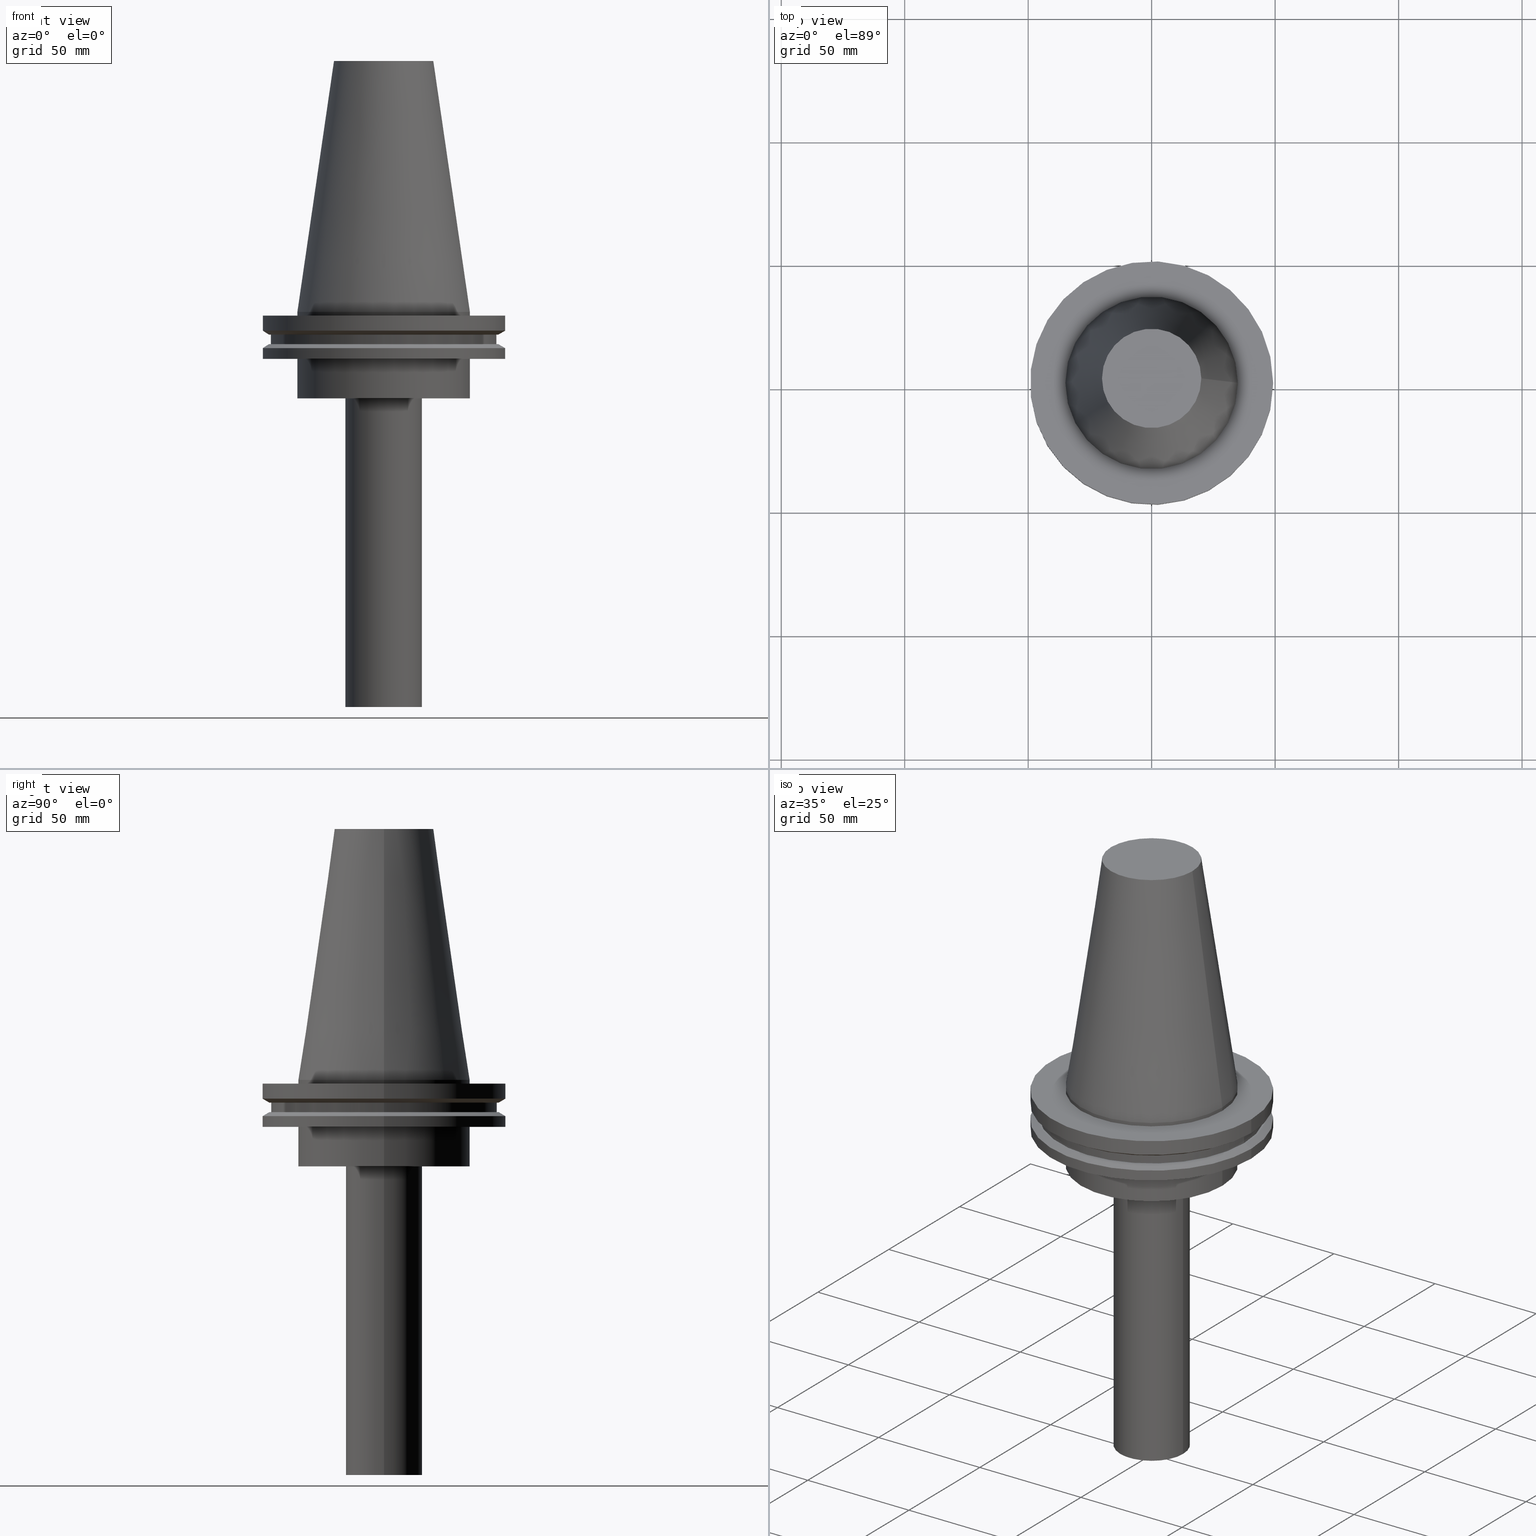
[diagram: canonical four-view strip — front | top / right | iso, engineering-drawing reading convention]
A machine part, canonical four-view strip (front | top / right | iso — engineering-drawing reading convention). The complete STEP part file that produces these views, byte-faithful:
ISO-10303-21;
HEADER;
FILE_DESCRIPTION (( 'STEP AP203' ),
    '1' );
FILE_NAME ('11.326.634.stp',
    '2022-03-09T14:50:47',
    ( '' ),
    ( '' ),
    'SwSTEP 2.0',
    'SolidWorks 2021',
    '' );
FILE_SCHEMA (( 'CONFIG_CONTROL_DESIGN' ));
ENDSEC;

DATA;
#1 = EDGE_LOOP ( 'NONE', ( #234 ) ) ;
#2 = DIRECTION ( 'NONE',  ( 1.000000000000000000, 0.000000000000000000, 0.000000000000000000 ) ) ;
#3 = EDGE_LOOP ( 'NONE', ( #334 ) ) ;
#4 = APPROVAL_ROLE ( '' ) ;
#5 = CARTESIAN_POINT ( 'NONE',  ( 15.50000000000000000, 0.000000000000000000, -159.9999999999999147 ) ) ;
#6 = CARTESIAN_POINT ( 'NONE',  ( 0.000000000000000000, 0.000000000000000000, 0.000000000000000000 ) ) ;
#7 = CIRCLE ( 'NONE', #151, 49.21499999999998920 ) ;
#8 = VERTEX_POINT ( 'NONE', #249 ) ;
#9 = LOCAL_TIME ( 8, 50, 47.00000000000000000, #311 ) ;
#10 = PERSON_AND_ORGANIZATION ( #111, #274 ) ;
#11 = VERTEX_POINT ( 'NONE', #378 ) ;
#12 = VERTEX_POINT ( 'NONE', #183 ) ;
#13 = APPROVAL_STATUS ( 'not_yet_approved' ) ;
#14 = FACE_OUTER_BOUND ( 'NONE', #1, .T. ) ;
#15 = AXIS2_PLACEMENT_3D ( 'NONE', #360, #44, #165 ) ;
#16 = AXIS2_PLACEMENT_3D ( 'NONE', #23, #365, #89 ) ;
#17 = PERSON_AND_ORGANIZATION_ROLE ( 'design_owner' ) ;
#18 = EDGE_CURVE ( 'NONE', #220, #220, #114, .T. ) ;
#19 = PLANE ( 'NONE',  #240 ) ;
#20 = CYLINDRICAL_SURFACE ( 'NONE', #332, 34.92499999999999005 ) ;
#21 = LOCAL_TIME ( 8, 50, 47.00000000000000000, #320 ) ;
#22 = DIRECTION ( 'NONE',  ( -0.000000000000000000, -0.000000000000000000, 1.000000000000000000 ) ) ;
#23 = CARTESIAN_POINT ( 'NONE',  ( 0.000000000000000000, 45.64500000000000313, -13.05499999999999794 ) ) ;
#24 = EDGE_LOOP ( 'NONE', ( #394 ) ) ;
#25 = FACE_OUTER_BOUND ( 'NONE', #3, .T. ) ;
#26 = FACE_BOUND ( 'NONE', #56, .T. ) ;
#27 = CIRCLE ( 'NONE', #219, 34.92499999999999005 ) ;
#28 = AXIS2_PLACEMENT_3D ( 'NONE', #258, #385, #197 ) ;
#29 = CARTESIAN_POINT ( 'NONE',  ( 34.92499999999999005, 0.000000000000000000, -1.499999999999987566 ) ) ;
#30 = DIRECTION ( 'NONE',  ( 1.000000000000000000, 0.000000000000000000, 0.000000000000000000 ) ) ;
#31 = VERTEX_POINT ( 'NONE', #29 ) ;
#32 = DIRECTION ( 'NONE',  ( 0.000000000000000000, 0.000000000000000000, -1.000000000000000000 ) ) ;
#33 = CC_DESIGN_PERSON_AND_ORGANIZATION_ASSIGNMENT ( #10, #162, ( #101 ) ) ;
#34 = CARTESIAN_POINT ( 'NONE',  ( 0.000000000000000000, 0.000000000000000000, 101.5999999999999943 ) ) ;
#35 = FACE_BOUND ( 'NONE', #298, .T. ) ;
#36 = PERSON_AND_ORGANIZATION_ROLE ( 'creator' ) ;
#37 = CARTESIAN_POINT ( 'NONE',  ( 49.21499999999999631, 0.000000000000000000, -1.499999999999987566 ) ) ;
#38 = ADVANCED_FACE ( 'NONE', ( #301, #26 ), #315, .T. ) ;
#39 = FACE_BOUND ( 'NONE', #203, .T. ) ;
#40 = LOCAL_TIME ( 8, 50, 47.00000000000000000, #254 ) ;
#41 = APPROVAL_DATE_TIME ( #380, #169 ) ;
#42 = DIRECTION ( 'NONE',  ( -0.000000000000000000, -0.000000000000000000, 1.000000000000000000 ) ) ;
#43 = DIRECTION ( 'NONE',  ( 0.000000000000000000, 0.000000000000000000, 1.000000000000000000 ) ) ;
#44 = DIRECTION ( 'NONE',  ( 0.000000000000000000, 0.000000000000000000, -1.000000000000000000 ) ) ;
#45 = CC_DESIGN_SECURITY_CLASSIFICATION ( #101, ( #390 ) ) ;
#46 = DIRECTION ( 'NONE',  ( -0.000000000000000000, -0.000000000000000000, 1.000000000000000000 ) ) ;
#47 = DIRECTION ( 'NONE',  ( 1.000000000000000000, 0.000000000000000000, 0.000000000000000000 ) ) ;
#48 = ADVANCED_FACE ( 'NONE', ( #180, #146 ), #152, .T. ) ;
#49 = AXIS2_PLACEMENT_3D ( 'NONE', #375, #350, #244 ) ;
#50 = CONICAL_SURFACE ( 'NONE', #15, 34.92499999999999005, 0.1448138465474119452 ) ;
#51 = LOCAL_TIME ( 8, 50, 47.00000000000000000, #167 ) ;
#52 = CARTESIAN_POINT ( 'NONE',  ( 0.000000000000000000, 0.000000000000000000, -9.204999999999991189 ) ) ;
#53 = ORIENTED_EDGE ( 'NONE', *, *, #75, .F. ) ;
#54 = DIRECTION ( 'NONE',  ( -0.000000000000000000, -0.000000000000000000, 1.000000000000000000 ) ) ;
#55 = CIRCLE ( 'NONE', #281, 34.92499999999999716 ) ;
#56 = EDGE_LOOP ( 'NONE', ( #210 ) ) ;
#57 = FACE_OUTER_BOUND ( 'NONE', #383, .T. ) ;
#58 = ORIENTED_EDGE ( 'NONE', *, *, #250, .F. ) ;
#59 = EDGE_CURVE ( 'NONE', #154, #154, #100, .T. ) ;
#60 = ORIENTED_EDGE ( 'NONE', *, *, #307, .T. ) ;
#61 = CIRCLE ( 'NONE', #115, 49.21500000000000341 ) ;
#62 = CARTESIAN_POINT ( 'NONE',  ( 15.50000000000000000, 0.000000000000000000, -35.00000000000000000 ) ) ;
#63 = CIRCLE ( 'NONE', #221, 20.10819343178871321 ) ;
#64 = VERTEX_POINT ( 'NONE', #99 ) ;
#65 = FACE_BOUND ( 'NONE', #343, .T. ) ;
#66 = PERSON_AND_ORGANIZATION ( #111, #274 ) ;
#67 = VERTEX_POINT ( 'NONE', #316 ) ;
#68 = DIRECTION ( 'NONE',  ( 0.000000000000000000, -0.000000000000000000, 1.000000000000000000 ) ) ;
#69 = AXIS2_PLACEMENT_3D ( 'NONE', #341, #391, #30 ) ;
#70 = SHAPE_DEFINITION_REPRESENTATION ( #357, #271 ) ;
#71 =( GEOMETRIC_REPRESENTATION_CONTEXT ( 3 ) GLOBAL_UNCERTAINTY_ASSIGNED_CONTEXT ( ( #144 ) ) GLOBAL_UNIT_ASSIGNED_CONTEXT ( ( #215, #127, #372 ) ) REPRESENTATION_CONTEXT ( 'NONE', 'WORKASPACE' ) );
#72 = DATE_TIME_ROLE ( 'creation_date' ) ;
#73 = CALENDAR_DATE ( 2022, 9, 3 ) ;
#74 = DIRECTION ( 'NONE',  ( 1.000000000000000000, 0.000000000000000000, 0.000000000000000000 ) ) ;
#75 = EDGE_CURVE ( 'NONE', #184, #184, #7, .T. ) ;
#76 = APPLICATION_PROTOCOL_DEFINITION ( 'international standard', 'config_control_design', 1994, #248 ) ;
#77 = DIRECTION ( 'NONE',  ( -0.000000000000000000, -0.000000000000000000, 1.000000000000000000 ) ) ;
#78 = EDGE_LOOP ( 'NONE', ( #304 ) ) ;
#79 = APPROVAL ( #317, 'UNSPECIFIED' ) ;
#80 = CIRCLE ( 'NONE', #233, 34.92499999999999005 ) ;
#81 = ADVANCED_FACE ( 'NONE', ( #279, #318 ), #131, .F. ) ;
#82 = EDGE_LOOP ( 'NONE', ( #325 ) ) ;
#83 = EDGE_LOOP ( 'NONE', ( #87 ) ) ;
#84 = ORIENTED_EDGE ( 'NONE', *, *, #261, .T. ) ;
#85 = ADVANCED_FACE ( 'NONE', ( #65, #185 ), #193, .T. ) ;
#86 = DIRECTION ( 'NONE',  ( -0.000000000000000000, -0.000000000000000000, 1.000000000000000000 ) ) ;
#87 = ORIENTED_EDGE ( 'NONE', *, *, #250, .T. ) ;
#88 = EDGE_LOOP ( 'NONE', ( #308 ) ) ;
#89 = DIRECTION ( 'NONE',  ( -1.000000000000000000, 0.000000000000000000, -0.000000000000000000 ) ) ;
#90 = EDGE_LOOP ( 'NONE', ( #370 ) ) ;
#91 = FACE_OUTER_BOUND ( 'NONE', #270, .T. ) ;
#92 = CLOSED_SHELL ( 'NONE', ( #149, #296, #393, #212, #81, #199, #85, #288, #48, #139, #38, #367, #133, #339, #230, #278 ) ) ;
#93 = DIRECTION ( 'NONE',  ( 1.000000000000000000, 0.000000000000000000, 0.000000000000000000 ) ) ;
#94 = LOCAL_TIME ( 8, 50, 47.00000000000000000, #354 ) ;
#95 = CARTESIAN_POINT ( 'NONE',  ( 34.92499999999999005, 0.000000000000000000, 0.000000000000000000 ) ) ;
#96 = DIRECTION ( 'NONE',  ( 1.000000000000000000, 0.000000000000000000, 0.000000000000000000 ) ) ;
#97 = CC_DESIGN_PERSON_AND_ORGANIZATION_ASSIGNMENT ( #66, #36, ( #390 ) ) ;
#98 = PERSON_AND_ORGANIZATION ( #111, #274 ) ;
#99 = CARTESIAN_POINT ( 'NONE',  ( 49.21500000000000341, 0.000000000000000000, -7.602389855251287187 ) ) ;
#100 = CIRCLE ( 'NONE', #171, 46.43919780457007818 ) ;
#101 = SECURITY_CLASSIFICATION ( '', '', #159 ) ;
#102 = DATE_AND_TIME ( #294, #51 ) ;
#103 = DIRECTION ( 'NONE',  ( -0.000000000000000000, -0.000000000000000000, 1.000000000000000000 ) ) ;
#104 = APPROVAL_STATUS ( 'not_yet_approved' ) ;
#105 = DIRECTION ( 'NONE',  ( 1.000000000000000000, 0.000000000000000000, 0.000000000000000000 ) ) ;
#106 = ORIENTED_EDGE ( 'NONE', *, *, #18, .F. ) ;
#107 = FACE_OUTER_BOUND ( 'NONE', #335, .T. ) ;
#108 = EDGE_CURVE ( 'NONE', #352, #352, #27, .T. ) ;
#109 = CIRCLE ( 'NONE', #305, 15.50000000000000000 ) ;
#110 = DIRECTION ( 'NONE',  ( -0.000000000000000000, -0.000000000000000000, 1.000000000000000000 ) ) ;
#111 = PERSON ( 'UNSPECIFIED', 'UNSPECIFIED', 'UNSPECIFIED', ('UNSPECIFIED'), ('UNSPECIFIED'), ('UNSPECIFIED') ) ;
#112 = ORIENTED_EDGE ( 'NONE', *, *, #75, .T. ) ;
#113 = DIRECTION ( 'NONE',  ( 1.000000000000000000, 0.000000000000000000, 0.000000000000000000 ) ) ;
#114 = CIRCLE ( 'NONE', #253, 49.21499999999999631 ) ;
#115 = AXIS2_PLACEMENT_3D ( 'NONE', #355, #77, #297 ) ;
#116 = AXIS2_PLACEMENT_3D ( 'NONE', #329, #46, #295 ) ;
#117 = CIRCLE ( 'NONE', #338, 45.64500000000000313 ) ;
#118 = CARTESIAN_POINT ( 'NONE',  ( 0.000000000000000000, 0.000000000000000000, 101.5999999999999943 ) ) ;
#119 = ORIENTED_EDGE ( 'NONE', *, *, #388, .T. ) ;
#120 = EDGE_LOOP ( 'NONE', ( #236 ) ) ;
#121 = EDGE_CURVE ( 'NONE', #282, #282, #361, .T. ) ;
#122 = FACE_OUTER_BOUND ( 'NONE', #260, .T. ) ;
#123 = EDGE_LOOP ( 'NONE', ( #112 ) ) ;
#124 = FACE_OUTER_BOUND ( 'NONE', #150, .T. ) ;
#125 = PLANE ( 'NONE',  #49 ) ;
#126 = DATE_AND_TIME ( #247, #21 ) ;
#127 =( NAMED_UNIT ( * ) PLANE_ANGLE_UNIT ( ) SI_UNIT ( $, .RADIAN. ) );
#128 = CARTESIAN_POINT ( 'NONE',  ( 0.000000000000000000, 0.000000000000000000, 101.5999999999999801 ) ) ;
#129 = DIRECTION ( 'NONE',  ( -0.000000000000000000, -0.000000000000000000, 1.000000000000000000 ) ) ;
#130 = DIRECTION ( 'NONE',  ( -0.000000000000000000, -0.000000000000000000, 1.000000000000000000 ) ) ;
#131 = PLANE ( 'NONE',  #198 ) ;
#132 = CALENDAR_DATE ( 2022, 9, 3 ) ;
#133 = ADVANCED_FACE ( 'NONE', ( #35, #158 ), #125, .F. ) ;
#134 = APPROVAL_ROLE ( '' ) ;
#135 = AXIS2_PLACEMENT_3D ( 'NONE', #387, #110, #231 ) ;
#136 = CYLINDRICAL_SURFACE ( 'NONE', #28, 49.21499999999998920 ) ;
#137 = CARTESIAN_POINT ( 'NONE',  ( 0.000000000000000000, 0.000000000000000000, 0.000000000000000000 ) ) ;
#138 = ORIENTED_EDGE ( 'NONE', *, *, #204, .F. ) ;
#139 = ADVANCED_FACE ( 'NONE', ( #187, #39 ), #174, .F. ) ;
#140 = CARTESIAN_POINT ( 'NONE',  ( 0.000000000000000000, 15.50000000000000000, -159.9999999999999147 ) ) ;
#141 = CC_DESIGN_DATE_AND_TIME_ASSIGNMENT ( #284, #376, ( #101 ) ) ;
#142 = AXIS2_PLACEMENT_3D ( 'NONE', #190, #43, #74 ) ;
#143 = FACE_OUTER_BOUND ( 'NONE', #179, .T. ) ;
#144 = UNCERTAINTY_MEASURE_WITH_UNIT (LENGTH_MEASURE( 1.000000000000000082E-05 ), #215, 'distance_accuracy_value', 'NONE');
#145 = PLANE ( 'NONE',  #16 ) ;
#146 = FACE_OUTER_BOUND ( 'NONE', #24, .T. ) ;
#147 = CARTESIAN_POINT ( 'NONE',  ( 0.000000000000000000, 20.10819343178871321, 101.5999999999999943 ) ) ;
#148 = DIRECTION ( 'NONE',  ( 1.000000000000000000, 0.000000000000000000, 0.000000000000000000 ) ) ;
#149 = ADVANCED_FACE ( 'NONE', ( #227, #324 ), #50, .T. ) ;
#150 = EDGE_LOOP ( 'NONE', ( #106 ) ) ;
#151 = AXIS2_PLACEMENT_3D ( 'NONE', #213, #286, #347 ) ;
#152 = CYLINDRICAL_SURFACE ( 'NONE', #344, 45.64500000000000313 ) ;
#153 = CC_DESIGN_APPROVAL ( #79, ( #101 ) ) ;
#154 = VERTEX_POINT ( 'NONE', #345 ) ;
#155 = ORIENTED_EDGE ( 'NONE', *, *, #261, .F. ) ;
#156 = VERTEX_POINT ( 'NONE', #374 ) ;
#157 = PLANE ( 'NONE',  #214 ) ;
#158 = FACE_OUTER_BOUND ( 'NONE', #82, .T. ) ;
#159 = SECURITY_CLASSIFICATION_LEVEL ( 'unclassified' ) ;
#160 = CARTESIAN_POINT ( 'NONE',  ( 0.000000000000000000, 34.92499999999999716, -35.00000000000000000 ) ) ;
#161 = CIRCLE ( 'NONE', #328, 46.43919780457007818 ) ;
#162 = PERSON_AND_ORGANIZATION_ROLE ( 'classification_officer' ) ;
#163 = PERSON_AND_ORGANIZATION_ROLE ( 'creator' ) ;
#164 = AXIS2_PLACEMENT_3D ( 'NONE', #314, #32, #216 ) ;
#165 = DIRECTION ( 'NONE',  ( -1.000000000000000000, 0.000000000000000000, 0.000000000000000000 ) ) ;
#166 = CC_DESIGN_APPROVAL ( #169, ( #175 ) ) ;
#167 = COORDINATED_UNIVERSAL_TIME_OFFSET ( 6, 0, .BEHIND. ) ;
#168 = FACE_OUTER_BOUND ( 'NONE', #337, .T. ) ;
#169 = APPROVAL ( #104, 'UNSPECIFIED' ) ;
#170 = FACE_OUTER_BOUND ( 'NONE', #276, .T. ) ;
#171 = AXIS2_PLACEMENT_3D ( 'NONE', #178, #22, #148 ) ;
#172 = DIRECTION ( 'NONE',  ( 1.000000000000000000, 0.000000000000000000, 0.000000000000000000 ) ) ;
#173 = APPROVAL_PERSON_ORGANIZATION ( #189, #79, #4 ) ;
#174 = PLANE ( 'NONE',  #327 ) ;
#175 = PRODUCT_DEFINITION ( 'UNKNOWN', '', #390, #302 ) ;
#176 = DIRECTION ( 'NONE',  ( -0.000000000000000000, -0.000000000000000000, 1.000000000000000000 ) ) ;
#177 = AXIS2_PLACEMENT_3D ( 'NONE', #283, #42, #93 ) ;
#178 = CARTESIAN_POINT ( 'NONE',  ( 0.000000000000000000, 0.000000000000000000, -9.204999999999991189 ) ) ;
#179 = EDGE_LOOP ( 'NONE', ( #155 ) ) ;
#180 = FACE_OUTER_BOUND ( 'NONE', #196, .T. ) ;
#181 = VERTEX_POINT ( 'NONE', #62 ) ;
#182 = CARTESIAN_POINT ( 'NONE',  ( 0.000000000000000000, 0.000000000000000000, -1.499999999999987566 ) ) ;
#183 = CARTESIAN_POINT ( 'NONE',  ( 46.43919780457007818, 0.000000000000000000, -13.05499999999999794 ) ) ;
#184 = VERTEX_POINT ( 'NONE', #277 ) ;
#185 = FACE_OUTER_BOUND ( 'NONE', #123, .T. ) ;
#186 = CARTESIAN_POINT ( 'NONE',  ( 49.21499999999998920, 0.000000000000000000, -19.04999999999999716 ) ) ;
#187 = FACE_OUTER_BOUND ( 'NONE', #369, .T. ) ;
#188 = CARTESIAN_POINT ( 'NONE',  ( 45.64500000000000313, 0.000000000000000000, -13.05499999999999794 ) ) ;
#189 = PERSON_AND_ORGANIZATION ( #111, #274 ) ;
#190 = CARTESIAN_POINT ( 'NONE',  ( 0.000000000000000000, 0.000000000000000000, 0.000000000000000000 ) ) ;
#191 = CC_DESIGN_PERSON_AND_ORGANIZATION_ASSIGNMENT ( #98, #373, ( #390 ) ) ;
#192 = ORIENTED_EDGE ( 'NONE', *, *, #204, .T. ) ;
#193 = CONICAL_SURFACE ( 'NONE', #164, 49.21499999999998920, 1.047197551196554333 ) ;
#194 = PERSON_AND_ORGANIZATION ( #111, #274 ) ;
#195 = CC_DESIGN_APPROVAL ( #238, ( #390 ) ) ;
#196 = EDGE_LOOP ( 'NONE', ( #386 ) ) ;
#197 = DIRECTION ( 'NONE',  ( 1.000000000000000000, 0.000000000000000000, 0.000000000000000000 ) ) ;
#198 = AXIS2_PLACEMENT_3D ( 'NONE', #222, #68, #322 ) ;
#199 = ADVANCED_FACE ( 'NONE', ( #107, #14 ), #136, .T. ) ;
#200 = CARTESIAN_POINT ( 'NONE',  ( 0.000000000000000000, 46.43919780457007818, -9.204999999999998295 ) ) ;
#201 = AXIS2_PLACEMENT_3D ( 'NONE', #34, #211, #252 ) ;
#202 = EDGE_LOOP ( 'NONE', ( #257 ) ) ;
#203 = EDGE_LOOP ( 'NONE', ( #395 ) ) ;
#204 = EDGE_CURVE ( 'NONE', #31, #31, #80, .T. ) ;
#205 = DIRECTION ( 'NONE',  ( 1.000000000000000000, 0.000000000000000000, 0.000000000000000000 ) ) ;
#206 = EDGE_LOOP ( 'NONE', ( #58 ) ) ;
#207 = APPROVAL_PERSON_ORGANIZATION ( #287, #238, #134 ) ;
#208 = DIRECTION ( 'NONE',  ( 1.000000000000000000, 0.000000000000000000, 0.000000000000000000 ) ) ;
#209 = ORIENTED_EDGE ( 'NONE', *, *, #273, .T. ) ;
#210 = ORIENTED_EDGE ( 'NONE', *, *, #59, .T. ) ;
#211 = DIRECTION ( 'NONE',  ( -0.000000000000000000, -0.000000000000000000, 1.000000000000000000 ) ) ;
#212 = ADVANCED_FACE ( 'NONE', ( #143, #168 ), #255, .T. ) ;
#213 = CARTESIAN_POINT ( 'NONE',  ( 0.000000000000000000, 0.000000000000000000, -14.65761014474876944 ) ) ;
#214 = AXIS2_PLACEMENT_3D ( 'NONE', #160, #377, #346 ) ;
#215 =( LENGTH_UNIT ( ) NAMED_UNIT ( * ) SI_UNIT ( .MILLI., .METRE. ) );
#216 = DIRECTION ( 'NONE',  ( -1.000000000000000000, 0.000000000000000000, 0.000000000000000000 ) ) ;
#217 = EDGE_CURVE ( 'NONE', #285, #285, #303, .T. ) ;
#218 = APPLICATION_CONTEXT ( 'configuration controlled 3d designs of mechanical parts and assemblies' ) ;
#219 = AXIS2_PLACEMENT_3D ( 'NONE', #6, #129, #96 ) ;
#220 = VERTEX_POINT ( 'NONE', #37 ) ;
#221 = AXIS2_PLACEMENT_3D ( 'NONE', #128, #371, #243 ) ;
#222 = CARTESIAN_POINT ( 'NONE',  ( 0.000000000000000000, 49.21499999999998920, -19.04999999999999716 ) ) ;
#223 = APPLICATION_PROTOCOL_DEFINITION ( 'international standard', 'config_control_design', 1994, #218 ) ;
#224 = CYLINDRICAL_SURFACE ( 'NONE', #289, 15.50000000000000000 ) ;
#225 = APPROVAL_ROLE ( '' ) ;
#226 = DIRECTION ( 'NONE',  ( -0.000000000000000000, -0.000000000000000000, 1.000000000000000000 ) ) ;
#227 = FACE_BOUND ( 'NONE', #202, .T. ) ;
#228 = APPROVAL_PERSON_ORGANIZATION ( #382, #169, #225 ) ;
#229 = DIRECTION ( 'NONE',  ( 1.000000000000000000, 0.000000000000000000, 0.000000000000000000 ) ) ;
#230 = ADVANCED_FACE ( 'NONE', ( #384, #381 ), #224, .T. ) ;
#231 = DIRECTION ( 'NONE',  ( 1.000000000000000000, 0.000000000000000000, 0.000000000000000000 ) ) ;
#232 = DIRECTION ( 'NONE',  ( -0.000000000000000000, -0.000000000000000000, 1.000000000000000000 ) ) ;
#233 = AXIS2_PLACEMENT_3D ( 'NONE', #293, #299, #172 ) ;
#234 = ORIENTED_EDGE ( 'NONE', *, *, #356, .T. ) ;
#235 = CIRCLE ( 'NONE', #265, 49.21499999999998920 ) ;
#236 = ORIENTED_EDGE ( 'NONE', *, *, #108, .T. ) ;
#237 = EDGE_LOOP ( 'NONE', ( #267 ) ) ;
#238 = APPROVAL ( #13, 'UNSPECIFIED' ) ;
#239 = ORIENTED_EDGE ( 'NONE', *, *, #59, .F. ) ;
#240 = AXIS2_PLACEMENT_3D ( 'NONE', #140, #259, #229 ) ;
#241 = ORIENTED_EDGE ( 'NONE', *, *, #108, .F. ) ;
#242 = CC_DESIGN_PERSON_AND_ORGANIZATION_ASSIGNMENT ( #291, #17, ( #268 ) ) ;
#243 = DIRECTION ( 'NONE',  ( 1.000000000000000000, 0.000000000000000000, 0.000000000000000000 ) ) ;
#244 = DIRECTION ( 'NONE',  ( -1.000000000000000000, 0.000000000000000000, -0.000000000000000000 ) ) ;
#245 = APPROVAL_DATE_TIME ( #126, #79 ) ;
#246 = VERTEX_POINT ( 'NONE', #186 ) ;
#247 = CALENDAR_DATE ( 2022, 9, 3 ) ;
#248 = APPLICATION_CONTEXT ( 'configuration controlled 3d designs of mechanical parts and assemblies' ) ;
#249 = CARTESIAN_POINT ( 'NONE',  ( 34.92499999999999716, 0.000000000000000000, -19.04999999999999716 ) ) ;
#250 = EDGE_CURVE ( 'NONE', #64, #64, #61, .T. ) ;
#251 = FACE_OUTER_BOUND ( 'NONE', #83, .T. ) ;
#252 = DIRECTION ( 'NONE',  ( 1.000000000000000000, 0.000000000000000000, 0.000000000000000000 ) ) ;
#253 = AXIS2_PLACEMENT_3D ( 'NONE', #182, #176, #264 ) ;
#254 = COORDINATED_UNIVERSAL_TIME_OFFSET ( 6, 0, .BEHIND. ) ;
#255 = CYLINDRICAL_SURFACE ( 'NONE', #362, 34.92499999999999716 ) ;
#256 = DIRECTION ( 'NONE',  ( 1.000000000000000000, 0.000000000000000000, 0.000000000000000000 ) ) ;
#257 = ORIENTED_EDGE ( 'NONE', *, *, #388, .F. ) ;
#258 = CARTESIAN_POINT ( 'NONE',  ( 0.000000000000000000, 0.000000000000000000, 101.5999999999999943 ) ) ;
#259 = DIRECTION ( 'NONE',  ( 0.000000000000000000, -0.000000000000000000, 1.000000000000000000 ) ) ;
#260 = EDGE_LOOP ( 'NONE', ( #192 ) ) ;
#261 = EDGE_CURVE ( 'NONE', #8, #8, #290, .T. ) ;
#262 = CARTESIAN_POINT ( 'NONE',  ( 0.000000000000000000, 0.000000000000000000, 101.5999999999999943 ) ) ;
#263 = PRODUCT_RELATED_PRODUCT_CATEGORY ( 'detail', '', ( #268 ) ) ;
#264 = DIRECTION ( 'NONE',  ( 1.000000000000000000, 0.000000000000000000, 0.000000000000000000 ) ) ;
#265 = AXIS2_PLACEMENT_3D ( 'NONE', #349, #130, #2 ) ;
#266 = DIRECTION ( 'NONE',  ( 0.000000000000000000, 0.000000000000000000, -1.000000000000000000 ) ) ;
#267 = ORIENTED_EDGE ( 'NONE', *, *, #217, .F. ) ;
#268 = PRODUCT ( '11.326.634', '11.326.634', '', ( #323 ) ) ;
#269 = DIRECTION ( 'NONE',  ( -0.000000000000000000, -0.000000000000000000, 1.000000000000000000 ) ) ;
#270 = EDGE_LOOP ( 'NONE', ( #306 ) ) ;
#271 = ADVANCED_BREP_SHAPE_REPRESENTATION ( '11.326.634', ( #319, #142 ), #71 ) ;
#272 = DIRECTION ( 'NONE',  ( 1.000000000000000000, 0.000000000000000000, 0.000000000000000000 ) ) ;
#273 = EDGE_CURVE ( 'NONE', #156, #156, #55, .T. ) ;
#274 = ORGANIZATION ( 'UNSPECIFIED', 'UNSPECIFIED', '' ) ;
#275 = FACE_BOUND ( 'NONE', #364, .T. ) ;
#276 = EDGE_LOOP ( 'NONE', ( #310 ) ) ;
#277 = CARTESIAN_POINT ( 'NONE',  ( 49.21499999999998920, 0.000000000000000000, -14.65761014474876944 ) ) ;
#278 = ADVANCED_FACE ( 'NONE', ( #170 ), #19, .F. ) ;
#279 = FACE_OUTER_BOUND ( 'NONE', #88, .T. ) ;
#280 = DATE_AND_TIME ( #132, #40 ) ;
#281 = AXIS2_PLACEMENT_3D ( 'NONE', #358, #330, #47 ) ;
#282 = VERTEX_POINT ( 'NONE', #5 ) ;
#283 = CARTESIAN_POINT ( 'NONE',  ( 0.000000000000000000, 0.000000000000000000, -159.9999999999999147 ) ) ;
#284 = DATE_AND_TIME ( #73, #9 ) ;
#285 = VERTEX_POINT ( 'NONE', #188 ) ;
#286 = DIRECTION ( 'NONE',  ( -0.000000000000000000, -0.000000000000000000, 1.000000000000000000 ) ) ;
#287 = PERSON_AND_ORGANIZATION ( #111, #274 ) ;
#288 = ADVANCED_FACE ( 'NONE', ( #331, #25 ), #145, .F. ) ;
#289 = AXIS2_PLACEMENT_3D ( 'NONE', #137, #103, #105 ) ;
#290 = CIRCLE ( 'NONE', #116, 34.92499999999999716 ) ;
#291 = PERSON_AND_ORGANIZATION ( #111, #274 ) ;
#292 = AXIS2_PLACEMENT_3D ( 'NONE', #147, #266, #392 ) ;
#293 = CARTESIAN_POINT ( 'NONE',  ( 0.000000000000000000, 0.000000000000000000, -1.499999999999987566 ) ) ;
#294 = CALENDAR_DATE ( 2022, 9, 3 ) ;
#295 = DIRECTION ( 'NONE',  ( 1.000000000000000000, 0.000000000000000000, 0.000000000000000000 ) ) ;
#296 = ADVANCED_FACE ( 'NONE', ( #340 ), #342, .F. ) ;
#297 = DIRECTION ( 'NONE',  ( 1.000000000000000000, 0.000000000000000000, 0.000000000000000000 ) ) ;
#298 = EDGE_LOOP ( 'NONE', ( #138 ) ) ;
#299 = DIRECTION ( 'NONE',  ( -0.000000000000000000, -0.000000000000000000, 1.000000000000000000 ) ) ;
#300 = DIRECTION ( 'NONE',  ( -0.000000000000000000, -0.000000000000000000, 1.000000000000000000 ) ) ;
#301 = FACE_OUTER_BOUND ( 'NONE', #206, .T. ) ;
#302 = DESIGN_CONTEXT ( 'detailed design', #218, 'design' ) ;
#303 = CIRCLE ( 'NONE', #135, 45.64500000000000313 ) ;
#304 = ORIENTED_EDGE ( 'NONE', *, *, #307, .F. ) ;
#305 = AXIS2_PLACEMENT_3D ( 'NONE', #368, #86, #205 ) ;
#306 = ORIENTED_EDGE ( 'NONE', *, *, #273, .F. ) ;
#307 = EDGE_CURVE ( 'NONE', #181, #181, #109, .T. ) ;
#308 = ORIENTED_EDGE ( 'NONE', *, *, #356, .F. ) ;
#309 = CYLINDRICAL_SURFACE ( 'NONE', #201, 49.21499999999999631 ) ;
#310 = ORIENTED_EDGE ( 'NONE', *, *, #121, .F. ) ;
#311 = COORDINATED_UNIVERSAL_TIME_OFFSET ( 6, 0, .BEHIND. ) ;
#312 = EDGE_CURVE ( 'NONE', #12, #12, #161, .T. ) ;
#313 = DIRECTION ( 'NONE',  ( 1.000000000000000000, 0.000000000000000000, 0.000000000000000000 ) ) ;
#314 = CARTESIAN_POINT ( 'NONE',  ( 0.000000000000000000, 0.000000000000000000, -14.65761014474876944 ) ) ;
#315 = CONICAL_SURFACE ( 'NONE', #69, 46.43919780457007818, 1.047197551196575205 ) ;
#316 = CARTESIAN_POINT ( 'NONE',  ( 20.10819343178871321, 0.000000000000000000, 101.5999999999999801 ) ) ;
#317 = APPROVAL_STATUS ( 'not_yet_approved' ) ;
#318 = FACE_BOUND ( 'NONE', #363, .T. ) ;
#319 = MANIFOLD_SOLID_BREP ( 'CKB', #92 ) ;
#320 = COORDINATED_UNIVERSAL_TIME_OFFSET ( 6, 0, .BEHIND. ) ;
#321 = CALENDAR_DATE ( 2022, 9, 3 ) ;
#322 = DIRECTION ( 'NONE',  ( 1.000000000000000000, 0.000000000000000000, 0.000000000000000000 ) ) ;
#323 = MECHANICAL_CONTEXT ( 'NONE', #248, 'mechanical' ) ;
#324 = FACE_OUTER_BOUND ( 'NONE', #120, .T. ) ;
#325 = ORIENTED_EDGE ( 'NONE', *, *, #18, .T. ) ;
#326 = CC_DESIGN_PERSON_AND_ORGANIZATION_ASSIGNMENT ( #194, #163, ( #175 ) ) ;
#327 = AXIS2_PLACEMENT_3D ( 'NONE', #200, #359, #113 ) ;
#328 = AXIS2_PLACEMENT_3D ( 'NONE', #336, #269, #208 ) ;
#329 = CARTESIAN_POINT ( 'NONE',  ( 0.000000000000000000, 0.000000000000000000, -19.04999999999999716 ) ) ;
#330 = DIRECTION ( 'NONE',  ( -0.000000000000000000, -0.000000000000000000, 1.000000000000000000 ) ) ;
#331 = FACE_BOUND ( 'NONE', #237, .T. ) ;
#332 = AXIS2_PLACEMENT_3D ( 'NONE', #389, #232, #333 ) ;
#333 = DIRECTION ( 'NONE',  ( 1.000000000000000000, 0.000000000000000000, 0.000000000000000000 ) ) ;
#334 = ORIENTED_EDGE ( 'NONE', *, *, #312, .T. ) ;
#335 = EDGE_LOOP ( 'NONE', ( #53 ) ) ;
#336 = CARTESIAN_POINT ( 'NONE',  ( 0.000000000000000000, 0.000000000000000000, -13.05499999999999794 ) ) ;
#337 = EDGE_LOOP ( 'NONE', ( #209 ) ) ;
#338 = AXIS2_PLACEMENT_3D ( 'NONE', #52, #300, #313 ) ;
#339 = ADVANCED_FACE ( 'NONE', ( #57, #122 ), #20, .T. ) ;
#340 = FACE_OUTER_BOUND ( 'NONE', #353, .T. ) ;
#341 = CARTESIAN_POINT ( 'NONE',  ( 0.000000000000000000, 0.000000000000000000, -9.204999999999991189 ) ) ;
#342 = PLANE ( 'NONE',  #292 ) ;
#343 = EDGE_LOOP ( 'NONE', ( #366 ) ) ;
#344 = AXIS2_PLACEMENT_3D ( 'NONE', #118, #54, #272 ) ;
#345 = CARTESIAN_POINT ( 'NONE',  ( 46.43919780457007818, 0.000000000000000000, -9.204999999999991189 ) ) ;
#346 = DIRECTION ( 'NONE',  ( 1.000000000000000000, 0.000000000000000000, 0.000000000000000000 ) ) ;
#347 = DIRECTION ( 'NONE',  ( 1.000000000000000000, 0.000000000000000000, 0.000000000000000000 ) ) ;
#348 = EDGE_CURVE ( 'NONE', #11, #11, #117, .T. ) ;
#349 = CARTESIAN_POINT ( 'NONE',  ( 0.000000000000000000, 0.000000000000000000, -19.04999999999999716 ) ) ;
#350 = DIRECTION ( 'NONE',  ( 0.000000000000000000, 0.000000000000000000, -1.000000000000000000 ) ) ;
#351 = APPROVAL_DATE_TIME ( #280, #238 ) ;
#352 = VERTEX_POINT ( 'NONE', #95 ) ;
#353 = EDGE_LOOP ( 'NONE', ( #119 ) ) ;
#354 = COORDINATED_UNIVERSAL_TIME_OFFSET ( 6, 0, .BEHIND. ) ;
#355 = CARTESIAN_POINT ( 'NONE',  ( 0.000000000000000000, 0.000000000000000000, -7.602389855251287187 ) ) ;
#356 = EDGE_CURVE ( 'NONE', #246, #246, #235, .T. ) ;
#357 = PRODUCT_DEFINITION_SHAPE ( 'NONE', 'NONE',  #175 ) ;
#358 = CARTESIAN_POINT ( 'NONE',  ( 0.000000000000000000, 0.000000000000000000, -35.00000000000000000 ) ) ;
#359 = DIRECTION ( 'NONE',  ( 0.000000000000000000, -0.000000000000000000, 1.000000000000000000 ) ) ;
#360 = CARTESIAN_POINT ( 'NONE',  ( 0.000000000000000000, 0.000000000000000000, 0.000000000000000000 ) ) ;
#361 = CIRCLE ( 'NONE', #177, 15.50000000000000000 ) ;
#362 = AXIS2_PLACEMENT_3D ( 'NONE', #262, #226, #256 ) ;
#363 = EDGE_LOOP ( 'NONE', ( #84 ) ) ;
#364 = EDGE_LOOP ( 'NONE', ( #60 ) ) ;
#365 = DIRECTION ( 'NONE',  ( 0.000000000000000000, 0.000000000000000000, -1.000000000000000000 ) ) ;
#366 = ORIENTED_EDGE ( 'NONE', *, *, #312, .F. ) ;
#367 = ADVANCED_FACE ( 'NONE', ( #124, #251 ), #309, .T. ) ;
#368 = CARTESIAN_POINT ( 'NONE',  ( 0.000000000000000000, 0.000000000000000000, -35.00000000000000000 ) ) ;
#369 = EDGE_LOOP ( 'NONE', ( #239 ) ) ;
#370 = ORIENTED_EDGE ( 'NONE', *, *, #121, .T. ) ;
#371 = DIRECTION ( 'NONE',  ( -0.000000000000000000, -0.000000000000000000, 1.000000000000000000 ) ) ;
#372 =( NAMED_UNIT ( * ) SI_UNIT ( $, .STERADIAN. ) SOLID_ANGLE_UNIT ( ) );
#373 = PERSON_AND_ORGANIZATION_ROLE ( 'design_supplier' ) ;
#374 = CARTESIAN_POINT ( 'NONE',  ( 34.92499999999999716, 0.000000000000000000, -35.00000000000000000 ) ) ;
#375 = CARTESIAN_POINT ( 'NONE',  ( 0.000000000000000000, 49.21499999999999631, -1.499999999999992895 ) ) ;
#376 = DATE_TIME_ROLE ( 'classification_date' ) ;
#377 = DIRECTION ( 'NONE',  ( 0.000000000000000000, -0.000000000000000000, 1.000000000000000000 ) ) ;
#378 = CARTESIAN_POINT ( 'NONE',  ( 45.64500000000000313, 0.000000000000000000, -9.204999999999991189 ) ) ;
#379 = CC_DESIGN_DATE_AND_TIME_ASSIGNMENT ( #102, #72, ( #175 ) ) ;
#380 = DATE_AND_TIME ( #321, #94 ) ;
#381 = FACE_OUTER_BOUND ( 'NONE', #90, .T. ) ;
#382 = PERSON_AND_ORGANIZATION ( #111, #274 ) ;
#383 = EDGE_LOOP ( 'NONE', ( #241 ) ) ;
#384 = FACE_OUTER_BOUND ( 'NONE', #78, .T. ) ;
#385 = DIRECTION ( 'NONE',  ( -0.000000000000000000, -0.000000000000000000, 1.000000000000000000 ) ) ;
#386 = ORIENTED_EDGE ( 'NONE', *, *, #348, .F. ) ;
#387 = CARTESIAN_POINT ( 'NONE',  ( 0.000000000000000000, 0.000000000000000000, -13.05499999999999794 ) ) ;
#388 = EDGE_CURVE ( 'NONE', #67, #67, #63, .T. ) ;
#389 = CARTESIAN_POINT ( 'NONE',  ( 0.000000000000000000, 0.000000000000000000, 101.5999999999999943 ) ) ;
#390 = PRODUCT_DEFINITION_FORMATION_WITH_SPECIFIED_SOURCE ( 'ANY', '', #268, .NOT_KNOWN. ) ;
#391 = DIRECTION ( 'NONE',  ( -0.000000000000000000, -0.000000000000000000, 1.000000000000000000 ) ) ;
#392 = DIRECTION ( 'NONE',  ( -1.000000000000000000, 0.000000000000000000, -0.000000000000000000 ) ) ;
#393 = ADVANCED_FACE ( 'NONE', ( #275, #91 ), #157, .F. ) ;
#394 = ORIENTED_EDGE ( 'NONE', *, *, #217, .T. ) ;
#395 = ORIENTED_EDGE ( 'NONE', *, *, #348, .T. ) ;
ENDSEC;
END-ISO-10303-21;
